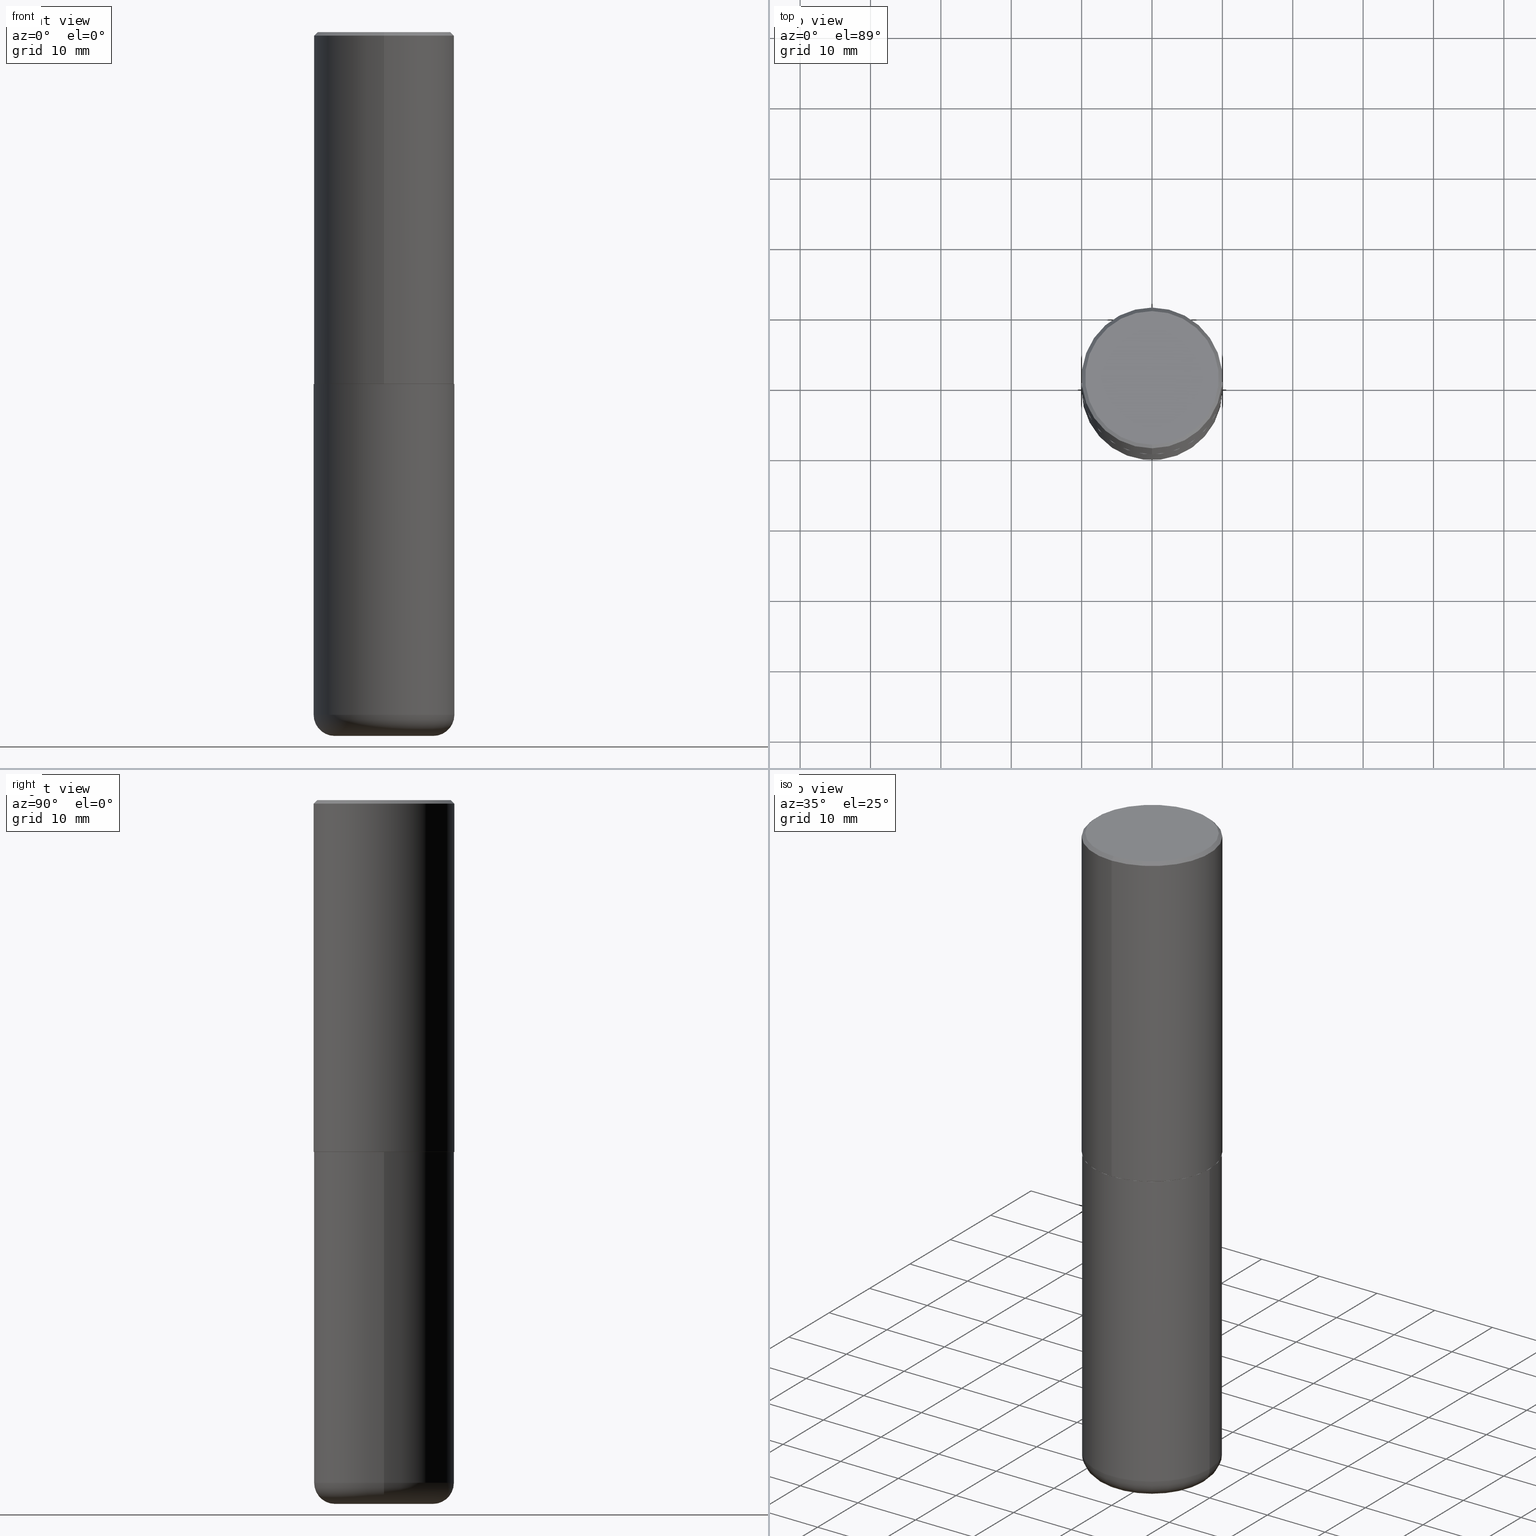
[diagram: canonical four-view strip — front | top / right | iso, engineering-drawing reading convention]
A machine part, canonical four-view strip (front | top / right | iso — engineering-drawing reading convention). The complete STEP part file that produces these views, byte-faithful:
ISO-10303-21;
HEADER;
FILE_DESCRIPTION (( 'STEP AP203' ),
    '1' );
FILE_NAME ('74811.STEP',
    '2024-05-02T19:20:24',
    ( '' ),
    ( '' ),
    'SwSTEP 2.0',
    'SolidWorks 2023',
    '' );
FILE_SCHEMA (( 'CONFIG_CONTROL_DESIGN' ));
ENDSEC;

DATA;
#1 = ADVANCED_FACE ( 'NONE', ( #16 ), #128, .T. ) ;
#2 = AXIS2_PLACEMENT_3D ( 'NONE', #82, #15, #71 ) ;
#3 = CIRCLE ( 'NONE', #62, 0.3937000000000002720 ) ;
#4 = ORIENTED_EDGE ( 'NONE', *, *, #246, .F. ) ;
#5 = EDGE_CURVE ( 'NONE', #361, #190, #125, .T. ) ;
#6 = EDGE_CURVE ( 'NONE', #96, #297, #70, .T. ) ;
#7 = DIRECTION ( 'NONE',  ( 2.447902336346030930E-29, -3.487996385144809360E-15, -1.000000000000000000 ) ) ;
#8 = ORIENTED_EDGE ( 'NONE', *, *, #379, .F. ) ;
#9 = SHAPE_DEFINITION_REPRESENTATION ( #356, #87 ) ;
#10 = EDGE_CURVE ( 'NONE', #297, #280, #158, .T. ) ;
#11 = DIRECTION ( 'NONE',  ( 1.000000000000000000, -6.982962677686266711E-15, 4.876176775795935793E-29 ) ) ;
#12 = CIRCLE ( 'NONE', #181, 0.3937000000000000499 ) ;
#13 = AXIS2_PLACEMENT_3D ( 'NONE', #72, #209, #346 ) ;
#14 = CARTESIAN_POINT ( 'NONE',  ( 2.749192406205084005E-15, 0.3937000000000000499, -0.02000000000000146105 ) ) ;
#15 = DIRECTION ( 'NONE',  ( -2.447902336346030930E-29, 3.487996385144809755E-15, 1.000000000000000000 ) ) ;
#16 = FACE_OUTER_BOUND ( 'NONE', #28, .T. ) ;
#17 = CARTESIAN_POINT ( 'NONE',  ( 2.797406750687540424E-15, 0.3936999999999934441, -1.967500000000001359 ) ) ;
#18 = CARTESIAN_POINT ( 'NONE',  ( 4.816247846760815671E-29, -6.862632887772413316E-15, -1.967500000000000027 ) ) ;
#19 = LINE ( 'NONE', #295, #105 ) ;
#20 = DIRECTION ( 'NONE',  ( 1.000000000000000000, -6.982962677686266711E-15, 4.883557194083112340E-29 ) ) ;
#21 = CARTESIAN_POINT ( 'NONE',  ( 4.895804672692082949E-31, -6.975992770289649092E-17, -0.02000000000000008715 ) ) ;
#22 = FACE_OUTER_BOUND ( 'NONE', #254, .T. ) ;
#23 = AXIS2_PLACEMENT_3D ( 'NONE', #161, #241, #298 ) ;
#24 = ADVANCED_FACE ( 'NONE', ( #22 ), #291, .T. ) ;
#25 = CARTESIAN_POINT ( 'NONE',  ( 4.818695749097161561E-29, -6.866120884157558352E-15, -1.968500000000000139 ) ) ;
#26 = COORDINATED_UNIVERSAL_TIME_OFFSET ( 5, 0, .BEHIND. ) ;
#27 = CYLINDRICAL_SURFACE ( 'NONE', #249, 0.3937000000000001054 ) ;
#28 = EDGE_LOOP ( 'NONE', ( #339, #129, #63, #8 ) ) ;
#29 = AXIS2_PLACEMENT_3D ( 'NONE', #271, #78, #305 ) ;
#30 = CARTESIAN_POINT ( 'NONE',  ( 4.895804672692082949E-31, -6.975992770289649092E-17, -0.02000000000000008715 ) ) ;
#31 = ADVANCED_FACE ( 'NONE', ( #86 ), #54, .T. ) ;
#32 = ORIENTED_EDGE ( 'NONE', *, *, #308, .F. ) ;
#33 = ADVANCED_FACE ( 'NONE', ( #149 ), #262, .F. ) ;
#34 = VECTOR ( 'NONE', #55, 39.37007874015748143 ) ;
#35 = AXIS2_PLACEMENT_3D ( 'NONE', #30, #320, #133 ) ;
#36 = VERTEX_POINT ( 'NONE', #197 ) ;
#37 = EDGE_CURVE ( 'NONE', #52, #361, #222, .T. ) ;
#38 = EDGE_LOOP ( 'NONE', ( #107, #170, #186, #416 ) ) ;
#39 = ORIENTED_EDGE ( 'NONE', *, *, #10, .T. ) ;
#40 = CIRCLE ( 'NONE', #223, 0.3937000000000000499 ) ;
#41 = ORGANIZATION ( 'UNSPECIFIED', 'UNSPECIFIED', '' ) ;
#42 = CARTESIAN_POINT ( 'NONE',  ( 2.790301323329961110E-15, 0.3926999999999931101, -1.968500000000001471 ) ) ;
#43 = EDGE_LOOP ( 'NONE', ( #4, #257, #371, #314 ) ) ;
#44 = APPROVAL_ROLE ( '' ) ;
#45 = CARTESIAN_POINT ( 'NONE',  ( 4.818695749097161561E-29, -6.866120884157558352E-15, -1.968500000000000139 ) ) ;
#46 = CARTESIAN_POINT ( 'NONE',  ( 0.3937000000000000499, -9.622173421717814924E-15, -1.968500000000000139 ) ) ;
#47 = CC_DESIGN_PERSON_AND_ORGANIZATION_ASSIGNMENT ( #417, #123, ( #188 ) ) ;
#48 = ORIENTED_EDGE ( 'NONE', *, *, #146, .F. ) ;
#49 = DIMENSIONAL_EXPONENTS ( 1.000000000000000000, 0.000000000000000000, 0.000000000000000000, 0.000000000000000000, 0.000000000000000000, 0.000000000000000000, 0.000000000000000000 ) ;
#50 = APPROVAL_DATE_TIME ( #101, #131 ) ;
#51 = DIRECTION ( 'NONE',  ( 6.982962677686265133E-15, 1.000000000000000000, -3.491137977679279029E-15 ) ) ;
#52 = VERTEX_POINT ( 'NONE', #342 ) ;
#53 = CYLINDRICAL_SURFACE ( 'NONE', #267, 0.3937000000000002164 ) ;
#54 = TOROIDAL_SURFACE ( 'NONE', #121, 0.2756000000000000116, 0.1181000000000000522 ) ;
#55 = DIRECTION ( 'NONE',  ( -4.937700262165053702E-15, -0.7071067811866175168, 0.7071067811864775177 ) ) ;
#56 = DIRECTION ( 'NONE',  ( 1.000000000000000000, -6.982962677686265133E-15, 0.000000000000000000 ) ) ;
#57 = DIRECTION ( 'NONE',  ( -6.982962677686265133E-15, -1.000000000000000000, 3.487996385144809755E-15 ) ) ;
#58 = CALENDAR_DATE ( 2024, 2, 5 ) ;
#59 = CARTESIAN_POINT ( 'NONE',  ( -2.749192406205036674E-15, -0.3937000000000070998, -1.967499999999998694 ) ) ;
#60 = EDGE_CURVE ( 'NONE', #190, #219, #340, .T. ) ;
#61 = AXIS2_PLACEMENT_3D ( 'NONE', #277, #201, #51 ) ;
#62 = AXIS2_PLACEMENT_3D ( 'NONE', #264, #187, #166 ) ;
#63 = ORIENTED_EDGE ( 'NONE', *, *, #296, .T. ) ;
#64 = EDGE_CURVE ( 'NONE', #96, #193, #315, .T. ) ;
#65 = APPLICATION_PROTOCOL_DEFINITION ( 'international standard', 'config_control_design', 1994, #272 ) ;
#66 = EDGE_CURVE ( 'NONE', #122, #297, #359, .T. ) ;
#67 = AXIS2_PLACEMENT_3D ( 'NONE', #157, #238, #285 ) ;
#68 = LOCAL_TIME ( 15, 20, 24.00000000000000000, #162 ) ;
#69 = AXIS2_PLACEMENT_3D ( 'NONE', #21, #118, #242 ) ;
#70 = LINE ( 'NONE', #42, #310 ) ;
#71 = DIRECTION ( 'NONE',  ( -6.982962677686265133E-15, -1.000000000000000000, 3.487996385144809755E-15 ) ) ;
#72 = CARTESIAN_POINT ( 'NONE',  ( 0.000000000000000000, 0.000000000000000000, 0.000000000000000000 ) ) ;
#73 = VECTOR ( 'NONE', #322, 39.37007874015748143 ) ;
#74 = DIRECTION ( 'NONE',  ( -2.447902336346030930E-29, 3.487996385144809360E-15, 1.000000000000000000 ) ) ;
#75 = LINE ( 'NONE', #196, #34 ) ;
#76 = ORIENTED_EDGE ( 'NONE', *, *, #244, .T. ) ;
#77 = PLANE ( 'NONE',  #194 ) ;
#78 = DIRECTION ( 'NONE',  ( -2.445468806185136597E-29, 3.491481338843145583E-15, 1.000000000000000000 ) ) ;
#79 = DIRECTION ( 'NONE',  ( 1.000000000000000000, -6.982962677686269077E-15, 0.000000000000000000 ) ) ;
#80 = CARTESIAN_POINT ( 'NONE',  ( -2.700978061722651647E-15, -0.3937000000000001609, -0.01999999999999870978 ) ) ;
#81 = AXIS2_PLACEMENT_3D ( 'NONE', #327, #7, #103 ) ;
#82 = CARTESIAN_POINT ( 'NONE',  ( -5.506038201652776757E-45, 7.845509626213831500E-31, 2.249288347782537153E-16 ) ) ;
#83 = EDGE_CURVE ( 'NONE', #36, #164, #372, .T. ) ;
#84 = CARTESIAN_POINT ( 'NONE',  ( -2.742209443527348687E-15, -0.3927000000000069324, -1.968499999999998584 ) ) ;
#85 = FACE_OUTER_BOUND ( 'NONE', #290, .T. ) ;
#86 = FACE_OUTER_BOUND ( 'NONE', #110, .T. ) ;
#87 = ADVANCED_BREP_SHAPE_REPRESENTATION ( '74811', ( #143, #140, #13 ), #378 ) ;
#88 = AXIS2_PLACEMENT_3D ( 'NONE', #235, #144, #231 ) ;
#89 = DATE_AND_TIME ( #319, #106 ) ;
#90 = EDGE_LOOP ( 'NONE', ( #255, #227, #48, #325 ) ) ;
#91 = DATE_TIME_ROLE ( 'classification_date' ) ;
#92 = CIRCLE ( 'NONE', #35, 0.3937000000000001054 ) ;
#93 = ADVANCED_FACE ( 'NONE', ( #373 ), #151, .T. ) ;
#94 = CARTESIAN_POINT ( 'NONE',  ( -2.749192406205084400E-15, -0.3937000000000002164, 1.373224176831512262E-15 ) ) ;
#95 = CLOSED_SHELL ( 'NONE', ( #253, #93, #326, #341, #31, #215 ) ) ;
#96 = VERTEX_POINT ( 'NONE', #112 ) ;
#97 = EDGE_LOOP ( 'NONE', ( #130, #292 ) ) ;
#98 = ORIENTED_EDGE ( 'NONE', *, *, #273, .F. ) ;
#99 = ORIENTED_EDGE ( 'NONE', *, *, #279, .F. ) ;
#100 = EDGE_CURVE ( 'NONE', #219, #190, #180, .T. ) ;
#101 = DATE_AND_TIME ( #390, #211 ) ;
#102 = FACE_OUTER_BOUND ( 'NONE', #90, .T. ) ;
#103 = DIRECTION ( 'NONE',  ( 6.982962677686265922E-15, 1.000000000000000000, -3.487996385144809360E-15 ) ) ;
#104 = DIRECTION ( 'NONE',  ( -2.445468806185136597E-29, 3.491481338843145583E-15, 1.000000000000000000 ) ) ;
#105 = VECTOR ( 'NONE', #167, 39.37007874015748143 ) ;
#106 = LOCAL_TIME ( 15, 20, 24.00000000000000000, #147 ) ;
#107 = ORIENTED_EDGE ( 'NONE', *, *, #37, .T. ) ;
#108 = PLANE ( 'NONE',  #377 ) ;
#109 = PERSON_AND_ORGANIZATION ( #331, #41 ) ;
#110 = EDGE_LOOP ( 'NONE', ( #357, #127, #333, #189 ) ) ;
#111 = DIRECTION ( 'NONE',  ( -1.000000000000000000, 6.982962677686265922E-15, -4.876176775795935793E-29 ) ) ;
#112 = CARTESIAN_POINT ( 'NONE',  ( 2.793854037008762403E-15, 0.3926999999999931101, -1.968500000000001471 ) ) ;
#113 = CARTESIAN_POINT ( 'NONE',  ( -0.2756000000000000116, -1.137536230515325427E-14, -3.818900000000000183 ) ) ;
#114 = DIRECTION ( 'NONE',  ( -6.982962677686265133E-15, -1.000000000000000000, 3.478288761986584267E-15 ) ) ;
#115 = AXIS2_PLACEMENT_3D ( 'NONE', #18, #136, #368 ) ;
#116 = CC_DESIGN_APPROVAL ( #159, ( #263 ) ) ;
#117 = DIRECTION ( 'NONE',  ( -6.982962677686265133E-15, -1.000000000000000000, 3.478288761986584267E-15 ) ) ;
#118 = DIRECTION ( 'NONE',  ( 2.447902336346030930E-29, -3.487996385144809755E-15, -1.000000000000000000 ) ) ;
#119 =( LENGTH_UNIT ( ) NAMED_UNIT ( * ) SI_UNIT ( $, .METRE. ) );
#120 = EDGE_CURVE ( 'NONE', #219, #316, #397, .T. ) ;
#121 = AXIS2_PLACEMENT_3D ( 'NONE', #275, #413, #20 ) ;
#122 = VERTEX_POINT ( 'NONE', #59 ) ;
#123 = PERSON_AND_ORGANIZATION_ROLE ( 'creator' ) ;
#124 = ORIENTED_EDGE ( 'NONE', *, *, #83, .F. ) ;
#125 = CIRCLE ( 'NONE', #173, 0.1181000000000000660 ) ;
#126 = CARTESIAN_POINT ( 'NONE',  ( -0.2756000000000000116, -1.116195879274560421E-14, -3.937000000000000277 ) ) ;
#127 = ORIENTED_EDGE ( 'NONE', *, *, #278, .T. ) ;
#128 = CONICAL_SURFACE ( 'NONE', #156, 0.3926999999999999935, 0.7853981633975507526 ) ;
#129 = ORIENTED_EDGE ( 'NONE', *, *, #64, .T. ) ;
#130 = ORIENTED_EDGE ( 'NONE', *, *, #146, .T. ) ;
#131 = APPROVAL ( #354, 'UNSPECIFIED' ) ;
#132 = CARTESIAN_POINT ( 'NONE',  ( 2.749192406205084005E-15, 0.3937000000000000499, -0.02000000000000146105 ) ) ;
#133 = DIRECTION ( 'NONE',  ( -6.982962677686265133E-15, -1.000000000000000000, 3.491137977679279029E-15 ) ) ;
#134 = DIRECTION ( 'NONE',  ( -1.000000000000000000, 7.105427357601000281E-15, 0.000000000000000000 ) ) ;
#135 = FACE_OUTER_BOUND ( 'NONE', #97, .T. ) ;
#136 = DIRECTION ( 'NONE',  ( -2.447902336346030930E-29, 3.487996385144809755E-15, 1.000000000000000000 ) ) ;
#137 = APPROVAL_STATUS ( 'not_yet_approved' ) ;
#138 = AXIS2_PLACEMENT_3D ( 'NONE', #366, #141, #332 ) ;
#139 = VECTOR ( 'NONE', #360, 39.37007874015748143 ) ;
#140 = MANIFOLD_SOLID_BREP ( 'Body-Move/Copy2[2]', #363 ) ;
#141 = DIRECTION ( 'NONE',  ( -2.447902336346030930E-29, 3.487996385144809755E-15, 1.000000000000000000 ) ) ;
#142 = DIRECTION ( 'NONE',  ( -2.445468806185136597E-29, 3.491481338843145583E-15, 1.000000000000000000 ) ) ;
#143 = MANIFOLD_SOLID_BREP ( 'Body-Move/Copy2[1]', #95 ) ;
#144 = DIRECTION ( 'NONE',  ( -2.447902336346030930E-29, 3.487996385144809360E-15, 1.000000000000000000 ) ) ;
#145 = CONICAL_SURFACE ( 'NONE', #69, 0.3937000000000001054, 0.7853981633974453924 ) ;
#146 = EDGE_CURVE ( 'NONE', #316, #324, #40, .T. ) ;
#147 = COORDINATED_UNIVERSAL_TIME_OFFSET ( 5, 0, .BEHIND. ) ;
#148 = ORIENTED_EDGE ( 'NONE', *, *, #10, .F. ) ;
#149 = FACE_OUTER_BOUND ( 'NONE', #350, .T. ) ;
#150 = CALENDAR_DATE ( 2024, 2, 5 ) ;
#151 = TOROIDAL_SURFACE ( 'NONE', #403, 0.2756000000000000116, 0.1181000000000000522 ) ;
#152 = APPROVAL_PERSON_ORGANIZATION ( #311, #398, #182 ) ;
#153 = CC_DESIGN_PERSON_AND_ORGANIZATION_ASSIGNMENT ( #177, #313, ( #276 ) ) ;
#154 = VECTOR ( 'NONE', #301, 39.37007874015748143 ) ;
#155 = ORIENTED_EDGE ( 'NONE', *, *, #279, .T. ) ;
#156 = AXIS2_PLACEMENT_3D ( 'NONE', #45, #400, #228 ) ;
#157 = CARTESIAN_POINT ( 'NONE',  ( 0.000000000000000000, 0.000000000000000000, 0.000000000000000000 ) ) ;
#158 = LINE ( 'NONE', #230, #240 ) ;
#159 = APPROVAL ( #137, 'UNSPECIFIED' ) ;
#160 = ORIENTED_EDGE ( 'NONE', *, *, #278, .F. ) ;
#161 = CARTESIAN_POINT ( 'NONE',  ( 9.339000823940418668E-29, -1.333361808490808928E-14, -3.818900000000000183 ) ) ;
#162 = COORDINATED_UNIVERSAL_TIME_OFFSET ( 5, 0, .BEHIND. ) ;
#163 = CARTESIAN_POINT ( 'NONE',  ( -0.3937000000000000499, -7.305892799522895709E-15, -1.968500000000000139 ) ) ;
#164 = VERTEX_POINT ( 'NONE', #338 ) ;
#165 = MECHANICAL_CONTEXT ( 'NONE', #179, 'mechanical' ) ;
#166 = DIRECTION ( 'NONE',  ( -6.982962677686265922E-15, -1.000000000000000000, 3.469453890861393601E-15 ) ) ;
#167 = DIRECTION ( 'NONE',  ( -4.851104656540950075E-15, -0.7071067811865479058, -0.7071067811865471286 ) ) ;
#168 = CIRCLE ( 'NONE', #381, 0.1181000000000000660 ) ;
#169 = CARTESIAN_POINT ( 'NONE',  ( 0.000000000000000000, 0.000000000000000000, 0.000000000000000000 ) ) ;
#170 = ORIENTED_EDGE ( 'NONE', *, *, #5, .T. ) ;
#171 = CARTESIAN_POINT ( 'NONE',  ( 4.813905344975441835E-29, -6.872981015512731707E-15, -1.968500000000000139 ) ) ;
#172 = ADVANCED_FACE ( 'NONE', ( #402 ), #145, .T. ) ;
#173 = AXIS2_PLACEMENT_3D ( 'NONE', #113, #387, #134 ) ;
#174 = FACE_OUTER_BOUND ( 'NONE', #43, .T. ) ;
#175 =( CONVERSION_BASED_UNIT ( 'INCH', #199 ) LENGTH_UNIT ( ) NAMED_UNIT ( #49 ) );
#176 = CALENDAR_DATE ( 2024, 2, 5 ) ;
#177 = PERSON_AND_ORGANIZATION ( #331, #41 ) ;
#178 = ORIENTED_EDGE ( 'NONE', *, *, #60, .T. ) ;
#179 = APPLICATION_CONTEXT ( 'configuration controlled 3d designs of mechanical parts and assemblies' ) ;
#180 = CIRCLE ( 'NONE', #23, 0.3937000000000001054 ) ;
#181 = AXIS2_PLACEMENT_3D ( 'NONE', #220, #418, #200 ) ;
#182 = APPROVAL_ROLE ( '' ) ;
#183 = FACE_OUTER_BOUND ( 'NONE', #195, .T. ) ;
#184 = ORIENTED_EDGE ( 'NONE', *, *, #120, .T. ) ;
#185 = CC_DESIGN_PERSON_AND_ORGANIZATION_ASSIGNMENT ( #109, #344, ( #263 ) ) ;
#186 = ORIENTED_EDGE ( 'NONE', *, *, #100, .F. ) ;
#187 = DIRECTION ( 'NONE',  ( -2.447902336346030930E-29, 3.487996385144809755E-15, 1.000000000000000000 ) ) ;
#188 = PRODUCT_DEFINITION_FORMATION_WITH_SPECIFIED_SOURCE ( 'ANY', '', #414, .NOT_KNOWN. ) ;
#189 = ORIENTED_EDGE ( 'NONE', *, *, #60, .F. ) ;
#190 = VERTEX_POINT ( 'NONE', #245 ) ;
#191 = DIRECTION ( 'NONE',  ( -2.445468806185136877E-29, 3.491481338843145188E-15, 1.000000000000000000 ) ) ;
#192 = EDGE_LOOP ( 'NONE', ( #124, #258, #229, #98 ) ) ;
#193 = VERTEX_POINT ( 'NONE', #84 ) ;
#194 = AXIS2_PLACEMENT_3D ( 'NONE', #208, #376, #335 ) ;
#195 = EDGE_LOOP ( 'NONE', ( #155, #367, #389, #293 ) ) ;
#196 = CARTESIAN_POINT ( 'NONE',  ( -2.742209443527348687E-15, -0.3927000000000069324, -1.968499999999998584 ) ) ;
#197 = CARTESIAN_POINT ( 'NONE',  ( -2.632373081744936315E-15, -0.3736999999999999211, 1.528393083906868747E-15 ) ) ;
#198 = ORIENTED_EDGE ( 'NONE', *, *, #352, .F. ) ;
#199 = LENGTH_MEASURE_WITH_UNIT ( LENGTH_MEASURE( 0.02539999999999999897 ), #119 );
#200 = DIRECTION ( 'NONE',  ( 1.000000000000000000, -6.982962677686265133E-15, 0.000000000000000000 ) ) ;
#201 = DIRECTION ( 'NONE',  ( 2.447902336346030930E-29, -3.487996385144809755E-15, -1.000000000000000000 ) ) ;
#202 = DIRECTION ( 'NONE',  ( 2.438088387897960049E-29, -3.491481338843145188E-15, -1.000000000000000000 ) ) ;
#203 = EDGE_CURVE ( 'NONE', #52, #219, #168, .T. ) ;
#204 = EDGE_LOOP ( 'NONE', ( #148, #383, #221, #32 ) ) ;
#205 = DESIGN_CONTEXT ( 'detailed design', #272, 'design' ) ;
#206 = AXIS2_PLACEMENT_3D ( 'NONE', #392, #309, #57 ) ;
#207 = CARTESIAN_POINT ( 'NONE',  ( 9.339000823940418668E-29, -1.333361808490808928E-14, -3.818900000000000183 ) ) ;
#208 = CARTESIAN_POINT ( 'NONE',  ( 9.627810689950883669E-29, -1.374596203102546341E-14, -3.937000000000000277 ) ) ;
#209 = DIRECTION ( 'NONE',  ( 0.000000000000000000, 0.000000000000000000, 1.000000000000000000 ) ) ;
#210 = CIRCLE ( 'NONE', #412, 0.3926999999999999935 ) ;
#211 = LOCAL_TIME ( 15, 20, 24.00000000000000000, #261 ) ;
#212 = DIRECTION ( 'NONE',  ( -2.447902336346030930E-29, 3.487996385144809755E-15, 1.000000000000000000 ) ) ;
#213 = ORIENTED_EDGE ( 'NONE', *, *, #345, .F. ) ;
#214 = ORIENTED_EDGE ( 'NONE', *, *, #66, .T. ) ;
#215 = ADVANCED_FACE ( 'NONE', ( #239 ), #77, .T. ) ;
#216 = PERSON_AND_ORGANIZATION ( #331, #41 ) ;
#217 = VECTOR ( 'NONE', #191, 39.37007874015748143 ) ;
#218 = ADVANCED_FACE ( 'NONE', ( #174 ), #232, .T. ) ;
#219 = VERTEX_POINT ( 'NONE', #415 ) ;
#220 = CARTESIAN_POINT ( 'NONE',  ( 4.813905344975441835E-29, -6.872981015512731707E-15, -1.968500000000000139 ) ) ;
#221 = ORIENTED_EDGE ( 'NONE', *, *, #396, .T. ) ;
#222 = CIRCLE ( 'NONE', #281, 0.2756000000000000116 ) ;
#223 = AXIS2_PLACEMENT_3D ( 'NONE', #407, #142, #56 ) ;
#224 = ORIENTED_EDGE ( 'NONE', *, *, #396, .F. ) ;
#225 = ADVANCED_FACE ( 'NONE', ( #183 ), #289, .T. ) ;
#226 = UNCERTAINTY_MEASURE_WITH_UNIT (LENGTH_MEASURE( 1.000000000000000082E-05 ), #175, 'distance_accuracy_value', 'NONE');
#227 = ORIENTED_EDGE ( 'NONE', *, *, #388, .T. ) ;
#228 = DIRECTION ( 'NONE',  ( -6.982962677686265133E-15, -1.000000000000000000, 3.478288761986584267E-15 ) ) ;
#229 = ORIENTED_EDGE ( 'NONE', *, *, #352, .T. ) ;
#230 = CARTESIAN_POINT ( 'NONE',  ( 2.797406750687515575E-15, 0.3937000000000002164, -1.373224176831512262E-15 ) ) ;
#231 = DIRECTION ( 'NONE',  ( -6.982962677686265922E-15, -1.000000000000000000, 3.487996385144809360E-15 ) ) ;
#232 = CONICAL_SURFACE ( 'NONE', #61, 0.3937000000000001054, 0.7853981633974453924 ) ;
#233 = CARTESIAN_POINT ( 'NONE',  ( 9.627810689950883669E-29, -1.374596203102546341E-14, -3.937000000000000277 ) ) ;
#234 = APPROVAL_PERSON_ORGANIZATION ( #216, #131, #287 ) ;
#235 = CARTESIAN_POINT ( 'NONE',  ( 4.818695749097161561E-29, -6.866120884157558352E-15, -1.968500000000000139 ) ) ;
#236 = COORDINATED_UNIVERSAL_TIME_OFFSET ( 5, 0, .BEHIND. ) ;
#237 = FACE_OUTER_BOUND ( 'NONE', #312, .T. ) ;
#238 = DIRECTION ( 'NONE',  ( -2.447902336346030930E-29, 3.487996385144809755E-15, 1.000000000000000000 ) ) ;
#239 = FACE_OUTER_BOUND ( 'NONE', #260, .T. ) ;
#240 = VECTOR ( 'NONE', #74, 39.37007874015748143 ) ;
#241 = DIRECTION ( 'NONE',  ( -2.445468806185136597E-29, 3.491481338843145583E-15, 1.000000000000000000 ) ) ;
#242 = DIRECTION ( 'NONE',  ( 6.982962677686265133E-15, 1.000000000000000000, -3.491137977679279029E-15 ) ) ;
#243 = DIRECTION ( 'NONE',  ( -2.445468806185136597E-29, 3.491481338843145583E-15, 1.000000000000000000 ) ) ;
#244 = EDGE_CURVE ( 'NONE', #164, #36, #266, .T. ) ;
#245 = CARTESIAN_POINT ( 'NONE',  ( -0.3937000000000001054, -1.053621133422057529E-14, -3.818900000000000183 ) ) ;
#246 = EDGE_CURVE ( 'NONE', #36, #284, #19, .T. ) ;
#247 =( NAMED_UNIT ( * ) PLANE_ANGLE_UNIT ( ) SI_UNIT ( $, .RADIAN. ) );
#248 = APPROVAL_DATE_TIME ( #89, #398 ) ;
#249 = AXIS2_PLACEMENT_3D ( 'NONE', #288, #330, #11 ) ;
#250 = CC_DESIGN_SECURITY_CLASSIFICATION ( #276, ( #188 ) ) ;
#251 = CC_DESIGN_DATE_AND_TIME_ASSIGNMENT ( #282, #91, ( #276 ) ) ;
#252 = DIRECTION ( 'NONE',  ( -6.982962677686265133E-15, -1.000000000000000000, 3.478288761986584267E-15 ) ) ;
#253 = ADVANCED_FACE ( 'NONE', ( #102 ), #374, .T. ) ;
#254 = EDGE_LOOP ( 'NONE', ( #214, #39, #198, #224 ) ) ;
#255 = ORIENTED_EDGE ( 'NONE', *, *, #100, .T. ) ;
#256 = CARTESIAN_POINT ( 'NONE',  ( -0.3937000000000001054, 2.797406750687515181E-15, -1.936584745033357016E-29 ) ) ;
#257 = ORIENTED_EDGE ( 'NONE', *, *, #244, .F. ) ;
#258 = ORIENTED_EDGE ( 'NONE', *, *, #246, .T. ) ;
#259 = ORIENTED_EDGE ( 'NONE', *, *, #37, .F. ) ;
#260 = EDGE_LOOP ( 'NONE', ( #259, #160 ) ) ;
#261 = COORDINATED_UNIVERSAL_TIME_OFFSET ( 5, 0, .BEHIND. ) ;
#262 = PLANE ( 'NONE',  #81 ) ;
#263 = PRODUCT_DEFINITION ( 'UNKNOWN', '', #188, #205 ) ;
#264 = CARTESIAN_POINT ( 'NONE',  ( 4.816247846760815671E-29, -6.862632887772413316E-15, -1.967500000000000027 ) ) ;
#265 = ADVANCED_FACE ( 'NONE', ( #85 ), #401, .F. ) ;
#266 = CIRCLE ( 'NONE', #206, 0.3736999999999999211 ) ;
#267 = AXIS2_PLACEMENT_3D ( 'NONE', #169, #337, #369 ) ;
#268 = APPROVAL_DATE_TIME ( #299, #159 ) ;
#269 = CARTESIAN_POINT ( 'NONE',  ( 9.339000823940418668E-29, -1.333361808490808928E-14, -3.818900000000000183 ) ) ;
#270 = LINE ( 'NONE', #132, #154 ) ;
#271 = CARTESIAN_POINT ( 'NONE',  ( 9.627810689950883669E-29, -1.374596203102546341E-14, -3.937000000000000277 ) ) ;
#272 = APPLICATION_CONTEXT ( 'configuration controlled 3d designs of mechanical parts and assemblies' ) ;
#273 = EDGE_CURVE ( 'NONE', #164, #280, #270, .T. ) ;
#274 = AXIS2_PLACEMENT_3D ( 'NONE', #207, #302, #328 ) ;
#275 = CARTESIAN_POINT ( 'NONE',  ( 9.339000823940418668E-29, -1.333361808490808928E-14, -3.818900000000000183 ) ) ;
#276 = SECURITY_CLASSIFICATION ( '', '', #380 ) ;
#277 = CARTESIAN_POINT ( 'NONE',  ( 4.895804672692082949E-31, -6.975992770289649092E-17, -0.02000000000000008715 ) ) ;
#278 = EDGE_CURVE ( 'NONE', #361, #52, #394, .T. ) ;
#279 = EDGE_CURVE ( 'NONE', #193, #96, #210, .T. ) ;
#280 = VERTEX_POINT ( 'NONE', #14 ) ;
#281 = AXIS2_PLACEMENT_3D ( 'NONE', #233, #365, #393 ) ;
#282 = DATE_AND_TIME ( #150, #395 ) ;
#283 = CC_DESIGN_APPROVAL ( #131, ( #276 ) ) ;
#284 = VERTEX_POINT ( 'NONE', #80 ) ;
#285 = DIRECTION ( 'NONE',  ( -6.982962677686265922E-15, -1.000000000000000000, 3.487996385144809360E-15 ) ) ;
#286 = DATE_AND_TIME ( #58, #405 ) ;
#287 = APPROVAL_ROLE ( '' ) ;
#288 = CARTESIAN_POINT ( 'NONE',  ( 0.000000000000000000, 0.000000000000000000, 0.000000000000000000 ) ) ;
#289 = CONICAL_SURFACE ( 'NONE', #386, 0.3926999999999999935, 0.7853981633975507526 ) ;
#290 = EDGE_LOOP ( 'NONE', ( #99, #411 ) ) ;
#291 = CYLINDRICAL_SURFACE ( 'NONE', #67, 0.3937000000000002164 ) ;
#292 = ORIENTED_EDGE ( 'NONE', *, *, #345, .T. ) ;
#293 = ORIENTED_EDGE ( 'NONE', *, *, #296, .F. ) ;
#294 = ORIENTED_EDGE ( 'NONE', *, *, #388, .F. ) ;
#295 = CARTESIAN_POINT ( 'NONE',  ( -2.700978061722651647E-15, -0.3937000000000001609, -0.01999999999999870978 ) ) ;
#296 = EDGE_CURVE ( 'NONE', #193, #122, #75, .T. ) ;
#297 = VERTEX_POINT ( 'NONE', #17 ) ;
#298 = DIRECTION ( 'NONE',  ( 1.000000000000000000, -6.982962677686266711E-15, 0.000000000000000000 ) ) ;
#299 = DATE_AND_TIME ( #176, #68 ) ;
#300 = FACE_OUTER_BOUND ( 'NONE', #204, .T. ) ;
#301 = DIRECTION ( 'NONE',  ( 4.937700262164533054E-15, 0.7071067811865430208, -0.7071067811865520136 ) ) ;
#302 = DIRECTION ( 'NONE',  ( -2.445468806185136597E-29, 3.491481338843145583E-15, 1.000000000000000000 ) ) ;
#303 = PERSON_AND_ORGANIZATION ( #331, #41 ) ;
#304 = LINE ( 'NONE', #256, #73 ) ;
#305 = DIRECTION ( 'NONE',  ( 1.000000000000000000, -6.982962677686265922E-15, 0.000000000000000000 ) ) ;
#306 = APPROVAL_PERSON_ORGANIZATION ( #303, #159, #44 ) ;
#307 = DIRECTION ( 'NONE',  ( 1.000000000000000000, -6.982962677686266711E-15, 4.876176775795935793E-29 ) ) ;
#308 = EDGE_CURVE ( 'NONE', #280, #284, #321, .T. ) ;
#309 = DIRECTION ( 'NONE',  ( -2.447902336346030930E-29, 3.487996385144809755E-15, 1.000000000000000000 ) ) ;
#310 = VECTOR ( 'NONE', #391, 39.37007874015748143 ) ;
#311 = PERSON_AND_ORGANIZATION ( #331, #41 ) ;
#312 = EDGE_LOOP ( 'NONE', ( #294, #178, #184, #213 ) ) ;
#313 = PERSON_AND_ORGANIZATION_ROLE ( 'classification_officer' ) ;
#314 = ORIENTED_EDGE ( 'NONE', *, *, #308, .T. ) ;
#315 = CIRCLE ( 'NONE', #353, 0.3926999999999999935 ) ;
#316 = VERTEX_POINT ( 'NONE', #46 ) ;
#317 = PERSON_AND_ORGANIZATION_ROLE ( 'design_supplier' ) ;
#318 = CC_DESIGN_PERSON_AND_ORGANIZATION_ASSIGNMENT ( #329, #351, ( #414 ) ) ;
#319 = CALENDAR_DATE ( 2024, 2, 5 ) ;
#320 = DIRECTION ( 'NONE',  ( -2.447902336346030930E-29, 3.487996385144809755E-15, 1.000000000000000000 ) ) ;
#321 = CIRCLE ( 'NONE', #138, 0.3937000000000001054 ) ;
#322 = DIRECTION ( 'NONE',  ( -2.445468806185136877E-29, 3.491481338843145188E-15, 1.000000000000000000 ) ) ;
#323 = CC_DESIGN_PERSON_AND_ORGANIZATION_ASSIGNMENT ( #410, #317, ( #188 ) ) ;
#324 = VERTEX_POINT ( 'NONE', #163 ) ;
#325 = ORIENTED_EDGE ( 'NONE', *, *, #120, .F. ) ;
#326 = ADVANCED_FACE ( 'NONE', ( #135 ), #108, .F. ) ;
#327 = CARTESIAN_POINT ( 'NONE',  ( 2.609533152651356620E-15, 0.3736999999999999211, -1.190999831739488445E-15 ) ) ;
#328 = DIRECTION ( 'NONE',  ( 1.000000000000000000, -6.982962677686266711E-15, 0.000000000000000000 ) ) ;
#329 = PERSON_AND_ORGANIZATION ( #331, #41 ) ;
#330 = DIRECTION ( 'NONE',  ( -2.445468806185136597E-29, 3.491481338843145583E-15, 1.000000000000000000 ) ) ;
#331 = PERSON ( 'UNSPECIFIED', 'UNSPECIFIED', 'UNSPECIFIED', ('UNSPECIFIED'), ('UNSPECIFIED'), ('UNSPECIFIED') ) ;
#332 = DIRECTION ( 'NONE',  ( -6.982962677686265133E-15, -1.000000000000000000, 3.491137977679279029E-15 ) ) ;
#333 = ORIENTED_EDGE ( 'NONE', *, *, #203, .T. ) ;
#334 =( NAMED_UNIT ( * ) SI_UNIT ( $, .STERADIAN. ) SOLID_ANGLE_UNIT ( ) );
#335 = DIRECTION ( 'NONE',  ( -1.000000000000000000, 6.982962677686265922E-15, -4.876176775795935793E-29 ) ) ;
#336 = CARTESIAN_POINT ( 'NONE',  ( 0.000000000000000000, 0.000000000000000000, 0.000000000000000000 ) ) ;
#337 = DIRECTION ( 'NONE',  ( -2.447902336346030930E-29, 3.487996385144809755E-15, 1.000000000000000000 ) ) ;
#338 = CARTESIAN_POINT ( 'NONE',  ( 2.679362779428220707E-15, 0.3736999999999999211, -1.078535414350361218E-15 ) ) ;
#339 = ORIENTED_EDGE ( 'NONE', *, *, #6, .F. ) ;
#340 = CIRCLE ( 'NONE', #274, 0.3937000000000001054 ) ;
#341 = ADVANCED_FACE ( 'NONE', ( #237 ), #27, .T. ) ;
#342 = CARTESIAN_POINT ( 'NONE',  ( 0.2756000000000000116, -1.567046654499579837E-14, -3.937000000000000277 ) ) ;
#343 = CARTESIAN_POINT ( 'NONE',  ( 4.818695749097161561E-29, -6.866120884157558352E-15, -1.968500000000000139 ) ) ;
#344 = PERSON_AND_ORGANIZATION_ROLE ( 'creator' ) ;
#345 = EDGE_CURVE ( 'NONE', #324, #316, #12, .T. ) ;
#346 = DIRECTION ( 'NONE',  ( 1.000000000000000000, 0.000000000000000000, 0.000000000000000000 ) ) ;
#347 = AXIS2_PLACEMENT_3D ( 'NONE', #336, #243, #307 ) ;
#348 = CC_DESIGN_APPROVAL ( #398, ( #188 ) ) ;
#349 = DATE_TIME_ROLE ( 'creation_date' ) ;
#350 = EDGE_LOOP ( 'NONE', ( #76, #385 ) ) ;
#351 = PERSON_AND_ORGANIZATION_ROLE ( 'design_owner' ) ;
#352 = EDGE_CURVE ( 'NONE', #284, #280, #92, .T. ) ;
#353 = AXIS2_PLACEMENT_3D ( 'NONE', #343, #362, #114 ) ;
#354 = APPROVAL_STATUS ( 'not_yet_approved' ) ;
#355 = APPROVAL_STATUS ( 'not_yet_approved' ) ;
#356 = PRODUCT_DEFINITION_SHAPE ( 'NONE', 'NONE',  #263 ) ;
#357 = ORIENTED_EDGE ( 'NONE', *, *, #5, .F. ) ;
#358 = CARTESIAN_POINT ( 'NONE',  ( 0.3937000000000001054, -2.749192406205084005E-15, 1.919750796630860452E-29 ) ) ;
#359 = CIRCLE ( 'NONE', #115, 0.3937000000000002720 ) ;
#360 = DIRECTION ( 'NONE',  ( -2.447902336346030930E-29, 3.487996385144809360E-15, 1.000000000000000000 ) ) ;
#361 = VERTEX_POINT ( 'NONE', #126 ) ;
#362 = DIRECTION ( 'NONE',  ( -2.447902336346030930E-29, 3.487996385144809755E-15, 1.000000000000000000 ) ) ;
#363 = CLOSED_SHELL ( 'NONE', ( #225, #24, #172, #218, #409, #1, #265, #33 ) ) ;
#364 = CARTESIAN_POINT ( 'NONE',  ( 4.818695749097161561E-29, -6.866120884157558352E-15, -1.968500000000000139 ) ) ;
#365 = DIRECTION ( 'NONE',  ( -2.445468806185136597E-29, 3.491481338843145583E-15, 1.000000000000000000 ) ) ;
#366 = CARTESIAN_POINT ( 'NONE',  ( 4.895804672692082949E-31, -6.975992770289649092E-17, -0.02000000000000008715 ) ) ;
#367 = ORIENTED_EDGE ( 'NONE', *, *, #6, .T. ) ;
#368 = DIRECTION ( 'NONE',  ( -6.982962677686265922E-15, -1.000000000000000000, 3.469453890861393601E-15 ) ) ;
#369 = DIRECTION ( 'NONE',  ( -6.982962677686265922E-15, -1.000000000000000000, 3.487996385144809360E-15 ) ) ;
#370 = CARTESIAN_POINT ( 'NONE',  ( 0.2756000000000000116, -1.525812259887842581E-14, -3.818900000000000183 ) ) ;
#371 = ORIENTED_EDGE ( 'NONE', *, *, #273, .T. ) ;
#372 = CIRCLE ( 'NONE', #2, 0.3736999999999999211 ) ;
#373 = FACE_OUTER_BOUND ( 'NONE', #38, .T. ) ;
#374 = CYLINDRICAL_SURFACE ( 'NONE', #347, 0.3937000000000001054 ) ;
#375 = APPLICATION_PROTOCOL_DEFINITION ( 'international standard', 'config_control_design', 1994, #179 ) ;
#376 = DIRECTION ( 'NONE',  ( 2.438088387897960049E-29, -3.491481338843145188E-15, -1.000000000000000000 ) ) ;
#377 = AXIS2_PLACEMENT_3D ( 'NONE', #171, #202, #111 ) ;
#378 =( GEOMETRIC_REPRESENTATION_CONTEXT ( 3 ) GLOBAL_UNCERTAINTY_ASSIGNED_CONTEXT ( ( #226 ) ) GLOBAL_UNIT_ASSIGNED_CONTEXT ( ( #175, #247, #334 ) ) REPRESENTATION_CONTEXT ( 'NONE', 'WORKASPACE' ) );
#379 = EDGE_CURVE ( 'NONE', #297, #122, #3, .T. ) ;
#380 = SECURITY_CLASSIFICATION_LEVEL ( 'unclassified' ) ;
#381 = AXIS2_PLACEMENT_3D ( 'NONE', #370, #408, #79 ) ;
#382 = PRODUCT_RELATED_PRODUCT_CATEGORY ( 'detail', '', ( #414 ) ) ;
#383 = ORIENTED_EDGE ( 'NONE', *, *, #379, .T. ) ;
#384 = LINE ( 'NONE', #94, #139 ) ;
#385 = ORIENTED_EDGE ( 'NONE', *, *, #83, .T. ) ;
#386 = AXIS2_PLACEMENT_3D ( 'NONE', #25, #212, #252 ) ;
#387 = DIRECTION ( 'NONE',  ( 7.105427357601001859E-15, 1.000000000000000000, -3.491481338843145583E-15 ) ) ;
#388 = EDGE_CURVE ( 'NONE', #190, #324, #304, .T. ) ;
#389 = ORIENTED_EDGE ( 'NONE', *, *, #66, .F. ) ;
#390 = CALENDAR_DATE ( 2024, 2, 5 ) ;
#391 = DIRECTION ( 'NONE',  ( 5.024295867788576727E-15, 0.7071067811866224018, 0.7071067811864726327 ) ) ;
#392 = CARTESIAN_POINT ( 'NONE',  ( -5.506038201652776757E-45, 7.845509626213831500E-31, 2.249288347782537153E-16 ) ) ;
#393 = DIRECTION ( 'NONE',  ( 1.000000000000000000, -6.982962677686265922E-15, 0.000000000000000000 ) ) ;
#394 = CIRCLE ( 'NONE', #29, 0.2756000000000000116 ) ;
#395 = LOCAL_TIME ( 15, 20, 24.00000000000000000, #26 ) ;
#396 = EDGE_CURVE ( 'NONE', #122, #284, #384, .T. ) ;
#397 = LINE ( 'NONE', #358, #217 ) ;
#398 = APPROVAL ( #355, 'UNSPECIFIED' ) ;
#399 = DIRECTION ( 'NONE',  ( 1.000000000000000000, -6.982962677686266711E-15, 4.883557194083112340E-29 ) ) ;
#400 = DIRECTION ( 'NONE',  ( -2.447902336346030930E-29, 3.487996385144809755E-15, 1.000000000000000000 ) ) ;
#401 = PLANE ( 'NONE',  #88 ) ;
#402 = FACE_OUTER_BOUND ( 'NONE', #192, .T. ) ;
#403 = AXIS2_PLACEMENT_3D ( 'NONE', #269, #104, #399 ) ;
#404 = DIRECTION ( 'NONE',  ( -2.447902336346030930E-29, 3.487996385144809755E-15, 1.000000000000000000 ) ) ;
#405 = LOCAL_TIME ( 15, 20, 24.00000000000000000, #236 ) ;
#406 = CC_DESIGN_DATE_AND_TIME_ASSIGNMENT ( #286, #349, ( #263 ) ) ;
#407 = CARTESIAN_POINT ( 'NONE',  ( 4.813905344975441835E-29, -6.872981015512731707E-15, -1.968500000000000139 ) ) ;
#408 = DIRECTION ( 'NONE',  ( -6.982962677686266711E-15, -1.000000000000000000, 3.491481338843145583E-15 ) ) ;
#409 = ADVANCED_FACE ( 'NONE', ( #300 ), #53, .T. ) ;
#410 = PERSON_AND_ORGANIZATION ( #331, #41 ) ;
#411 = ORIENTED_EDGE ( 'NONE', *, *, #64, .F. ) ;
#412 = AXIS2_PLACEMENT_3D ( 'NONE', #364, #404, #117 ) ;
#413 = DIRECTION ( 'NONE',  ( -2.445468806185136597E-29, 3.491481338843145583E-15, 1.000000000000000000 ) ) ;
#414 = PRODUCT ( '74811', '74811', '', ( #165 ) ) ;
#415 = CARTESIAN_POINT ( 'NONE',  ( 0.3937000000000001054, -1.608281049111317408E-14, -3.818900000000000183 ) ) ;
#416 = ORIENTED_EDGE ( 'NONE', *, *, #203, .F. ) ;
#417 = PERSON_AND_ORGANIZATION ( #331, #41 ) ;
#418 = DIRECTION ( 'NONE',  ( -2.445468806185136597E-29, 3.491481338843145583E-15, 1.000000000000000000 ) ) ;
ENDSEC;
END-ISO-10303-21;
